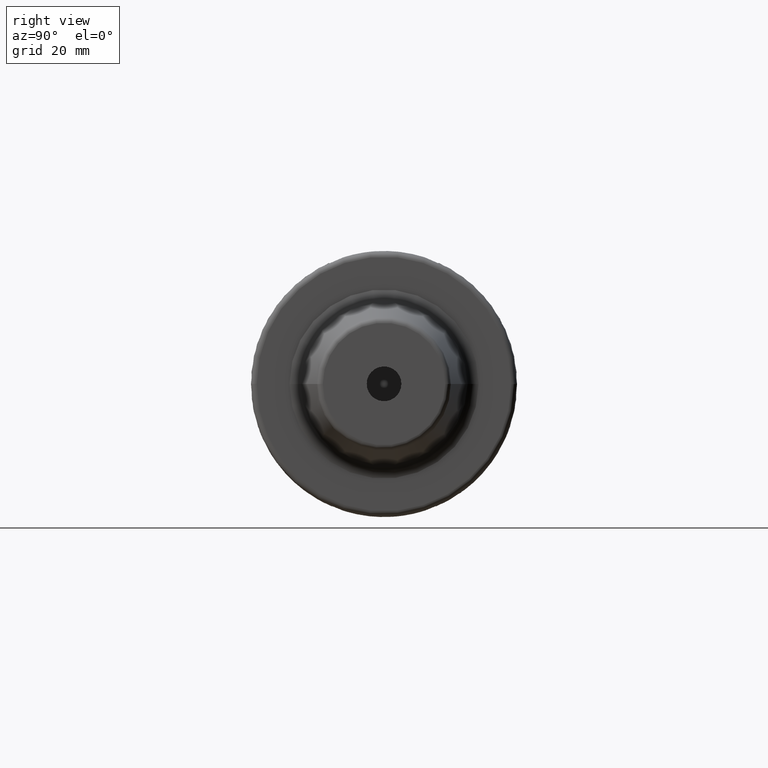
[diagram: clean part render]
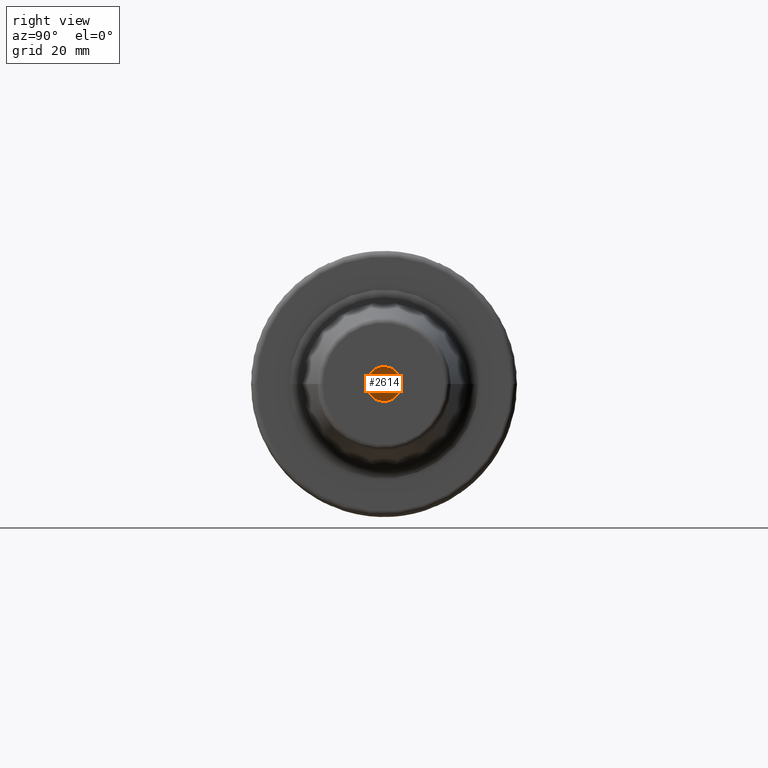
[diagram: same view with one face highlighted and labeled with its STEP entity id]
A machine part, right view. The second image highlights one B-rep face of the part: STEP entity #2614.
In plain terms, the highlighted planar face has unit normal (-1, 0, 0).
Its self-contained STEP definition (entity closure, byte-faithful):
#908=CARTESIAN_POINT('',(2.4E1,0.E0,0.E0));
#909=DIRECTION('',(-1.E0,0.E0,0.E0));
#910=DIRECTION('',(0.E0,-1.E0,0.E0));
#911=AXIS2_PLACEMENT_3D('',#908,#909,#910);
#913=CARTESIAN_POINT('',(2.4E1,0.E0,0.E0));
#914=DIRECTION('',(-1.E0,0.E0,0.E0));
#915=DIRECTION('',(0.E0,1.E0,0.E0));
#916=AXIS2_PLACEMENT_3D('',#913,#914,#915);
#1357=CARTESIAN_POINT('',(2.4E1,-3.E0,0.E0));
#1358=CARTESIAN_POINT('',(2.4E1,3.E0,0.E0));
#1359=VERTEX_POINT('',#1357);
#1360=VERTEX_POINT('',#1358);
#2605=CARTESIAN_POINT('',(2.4E1,0.E0,0.E0));
#2606=DIRECTION('',(-1.E0,0.E0,0.E0));
#2607=DIRECTION('',(0.E0,-1.E0,0.E0));
#2608=AXIS2_PLACEMENT_3D('',#2605,#2606,#2607);
#2609=PLANE('',#2608);
#2610=ORIENTED_EDGE('',*,*,#2585,.T.);
#2611=ORIENTED_EDGE('',*,*,#2599,.T.);
#2612=EDGE_LOOP('',(#2610,#2611));
#2613=FACE_OUTER_BOUND('',#2612,.F.);
#2614=ADVANCED_FACE('',(#2613),#2609,.F.);
#912=CIRCLE('',#911,3.E0);
#917=CIRCLE('',#916,3.E0);
#2585=EDGE_CURVE('',#1359,#1360,#912,.T.);
#2599=EDGE_CURVE('',#1360,#1359,#917,.T.);